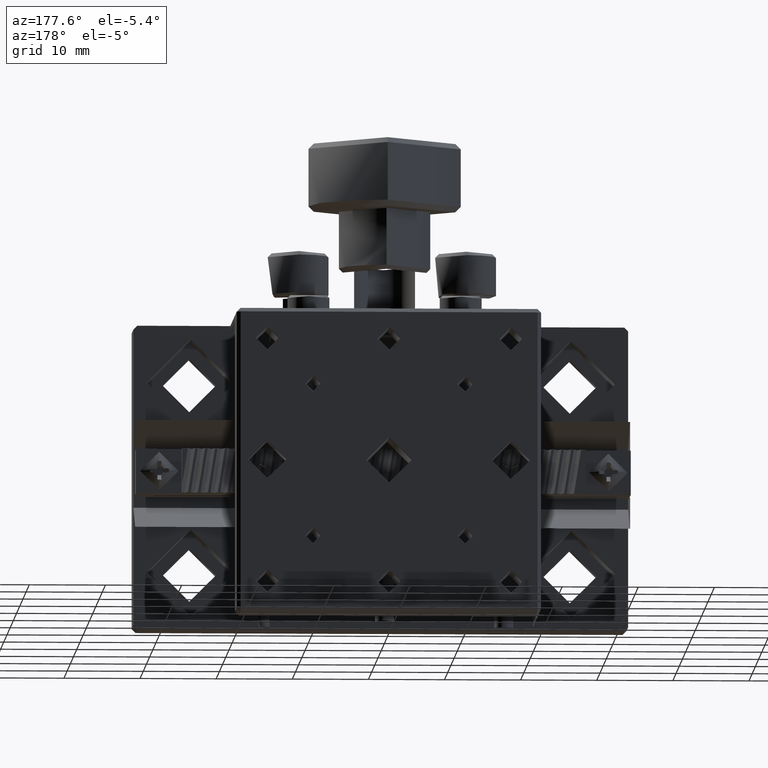
[diagram: clean part render]
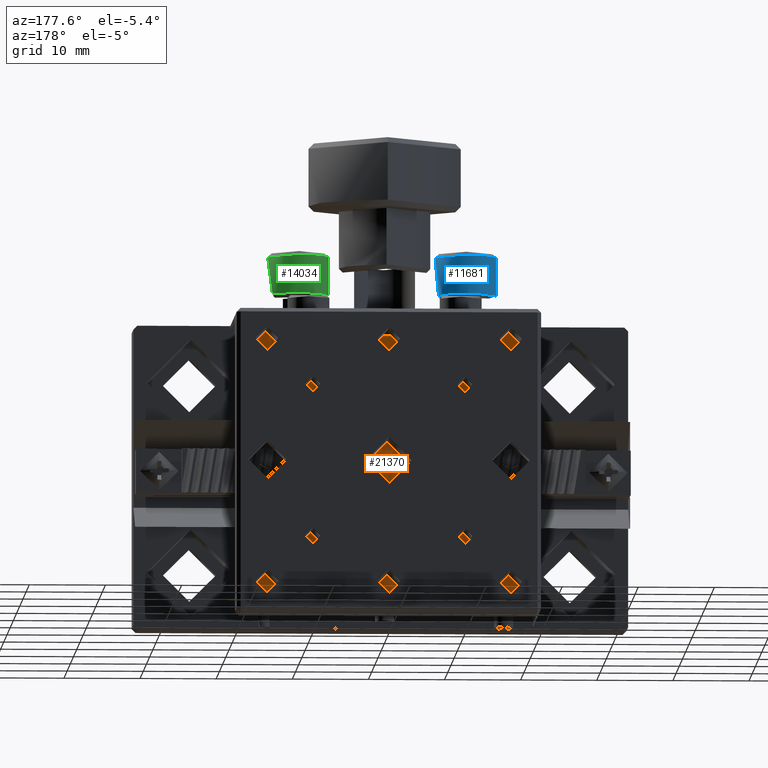
[diagram: same view with three faces highlighted in distinct colors, each labeled with its STEP entity id]
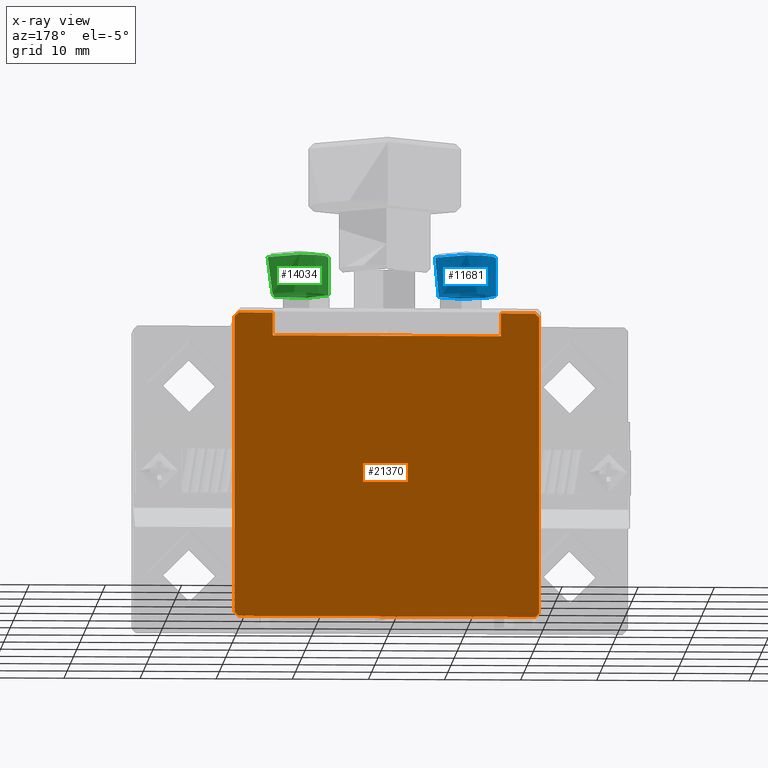
[diagram: x-ray of the same camera — body ghosted, the three highlighted faces saturated]
A machine part, auxiliary view with three faces highlighted in distinct colors.
The next image is the same camera in x-ray (body ghosted, the three faces saturated) — at least one of them is partly hidden behind the body in this view.
Their STEP definitions:

[orange] entity #21370 — the highlighted planar face has unit normal (-0, -1, 0).
#51 = CARTESIAN_POINT ( 'NONE',  ( 36.61330177514791728, 32.55204733727814670, 1.275000000000005240 ) ) ;
#98 = VERTEX_POINT ( 'NONE', #11751 ) ;
#184 = CARTESIAN_POINT ( 'NONE',  ( 4.294551284482553299, 32.55204733727815380, 1.245160027951528692 ) ) ;
#201 = CARTESIAN_POINT ( 'NONE',  ( 7.671964293083752828, 32.55204733727813959, -12.26560805632169249 ) ) ;
#203 = CARTESIAN_POINT ( 'NONE',  ( 6.613301775147912842, 32.55204733727813959, -7.499999999999881872 ) ) ;
#234 = CARTESIAN_POINT ( 'NONE',  ( 20.77243295140525703, 32.55204733727813249, -17.24999999999986144 ) ) ;
#302 = CARTESIAN_POINT ( 'NONE',  ( 8.965900160498531335, 32.55204733727813959, -10.84604211778363236 ) ) ;
#316 = CARTESIAN_POINT ( 'NONE',  ( 33.73007836059832698, 32.55204733727814670, -12.33886963622713218 ) ) ;
#323 = CARTESIAN_POINT ( 'NONE',  ( 37.73417788283791907, 32.55204733727814670, -0.6327003457485418370 ) ) ;
#389 = CARTESIAN_POINT ( 'NONE',  ( 0.6133017751479112878, 32.55204733727813959, 20.00000000000004263 ) ) ;
#399 = CARTESIAN_POINT ( 'NONE',  ( 8.952179569458445840, 32.55204733727813959, -10.88320279520946343 ) ) ;
#416 = CARTESIAN_POINT ( 'NONE',  ( 33.08941661521481592, 32.55204733727813959, -12.01154370871340227 ) ) ;
#432 = CARTESIAN_POINT ( 'NONE',  ( 21.03634297164969169, 32.55204733727813959, -14.82359429380815463 ) ) ;
#518 = CARTESIAN_POINT ( 'NONE',  ( 9.113234405169944097, 32.55204733727813959, -9.682442783675581310 ) ) ;
#521 = CARTESIAN_POINT ( 'NONE',  ( 35.61330177514791728, 32.55204733727813959, 20.00000000000004974 ) ) ;
#550 = CARTESIAN_POINT ( 'NONE',  ( 20.61330177514791728, 32.55204733727813959, -17.24999999999986500 ) ) ;
#573 = CARTESIAN_POINT ( 'NONE',  ( 35.64959879587496516, 32.55204733727814670, -0.8394717799850848206 ) ) ;
#636 = CARTESIAN_POINT ( 'NONE',  ( 35.61330177514791018, 32.55204733727813959, -29.61324245374878927 ) ) ;
#714 = CARTESIAN_POINT ( 'NONE',  ( 36.06182279446723982, 32.55204733727813249, -12.05075149682200397 ) ) ;
#773 = CARTESIAN_POINT ( 'NONE',  ( 35.40028457294522468, 32.55204733727816091, 0.3933547213005292309 ) ) ;
#815 = ORIENTED_EDGE ( 'NONE', *, *, #7731, .T. ) ;
#871 = ORIENTED_EDGE ( 'NONE', *, *, #12770, .T. ) ;
#930 = CARTESIAN_POINT ( 'NONE',  ( 35.00634292752754106, 32.55204733727813959, -7.521941155917869715 ) ) ;
#945 = CARTESIAN_POINT ( 'NONE',  ( 4.181798917008546113, 32.55204733727814670, -1.199933820315572053 ) ) ;
#1214 = LINE ( 'NONE', #14922, #2216 ) ;
#1255 = CARTESIAN_POINT ( 'NONE',  ( 4.113369145125888693, 32.55204733727813959, -10.31755721632744738 ) ) ;
#1354 = CARTESIAN_POINT ( 'NONE',  ( 40.61330177514792439, 32.55204733727814670, -14.49999999999986855 ) ) ;
#1367 = EDGE_CURVE ( 'NONE', #4497, #14385, #9255, .T. ) ;
#1372 = CARTESIAN_POINT ( 'NONE',  ( 4.613301775147911066, 32.55204733727814670, -1.275000000000001910 ) ) ;
#1386 = CARTESIAN_POINT ( 'NONE',  ( 20.30079780324019367, 32.55204733727814670, -14.77925487455721765 ) ) ;
#1444 = LINE ( 'NONE', #8261, #5643 ) ;
#1454 = CARTESIAN_POINT ( 'NONE',  ( 6.613301775147919948, 32.55204733727813959, -12.49999999999988276 ) ) ;
#1456 = LINE ( 'NONE', #1354, #8763 ) ;
#1470 = CARTESIAN_POINT ( 'NONE',  ( 3.980601429397501168, 32.55204733727814670, -1.120876107689271706 ) ) ;
#1476 = CARTESIAN_POINT ( 'NONE',  ( 5.791330315332874790, 32.55204733727816091, 0.4881207203202870271 ) ) ;
#1523 = CARTESIAN_POINT ( 'NONE',  ( 40.11330177514791018, 32.55204733727813959, -19.99999999999987921 ) ) ;
#1587 = CARTESIAN_POINT ( 'NONE',  ( 3.649598795875333757, 32.55204733727815380, -0.8394717799860287322 ) ) ;
#1593 = CARTESIAN_POINT ( 'NONE',  ( 5.101443812842690662, 32.55204733727815380, -1.178020090842482492 ) ) ;
#1607 = CARTESIAN_POINT ( 'NONE',  ( 19.36336907704967558, 32.55204733727814670, -16.15860422524255213 ) ) ;
#1703 = CARTESIAN_POINT ( 'NONE',  ( 7.006342927531766129, 32.55204733727813249, -7.521941155917867938 ) ) ;
#1803 = CARTESIAN_POINT ( 'NONE',  ( 7.496525189697777591, 32.55204733727814670, -7.661130363772627128 ) ) ;
#1911 = CARTESIAN_POINT ( 'NONE',  ( 6.613301775147912842, 32.55204733727813959, -7.499999999999881872 ) ) ;
#2011 = CARTESIAN_POINT ( 'NONE',  ( 8.878909831469536940, 32.55204733727813249, -8.941337482065124576 ) ) ;
#2041 = CARTESIAN_POINT ( 'NONE',  ( 20.80974420130334579, 32.55204733727813959, -14.76097057795888468 ) ) ;
#2106 = CARTESIAN_POINT ( 'NONE',  ( 8.921637980110075361, 32.55204733727814670, -9.039759107609556921 ) ) ;
#2120 = LINE ( 'NONE', #636, #15416 ) ;
#2139 = CARTESIAN_POINT ( 'NONE',  ( 21.15228144217314110, 32.55204733727814670, -17.12810262512579129 ) ) ;
#2163 = CARTESIAN_POINT ( 'NONE',  ( 36.41292737302596549, 32.55204733727815380, -1.263810010481818846 ) ) ;
#2216 = VECTOR ( 'NONE', #17663, 1000.000000000000114 ) ;
#2369 = CARTESIAN_POINT ( 'NONE',  ( 40.61330177514792439, 32.55204733727815380, 19.50000000000003553 ) ) ;
#2370 = CARTESIAN_POINT ( 'NONE',  ( 36.61330177514791728, 32.55204733727814670, -1.274999999999994804 ) ) ;
#2399 = CARTESIAN_POINT ( 'NONE',  ( 4.613301775147911066, 32.55204733727814670, 1.274999999999994804 ) ) ;
#2416 = CARTESIAN_POINT ( 'NONE',  ( 36.13718693509314761, 32.55204733727813249, -7.988456291302915346 ) ) ;
#2529 = CARTESIAN_POINT ( 'NONE',  ( 36.62484548384496463, 32.55204733727813249, -11.52388515994389984 ) ) ;
#2544 = CARTESIAN_POINT ( 'NONE',  ( 4.277248174825853511, 32.55204733727813959, -1.231172541053816349 ) ) ;
#2550 = ORIENTED_EDGE ( 'NONE', *, *, #9068, .T. ) ;
#2639 = CARTESIAN_POINT ( 'NONE',  ( 34.93138601157139078, 32.55204733727813959, -12.49999999999987921 ) ) ;
#2668 = CARTESIAN_POINT ( 'NONE',  ( 32.41293449357204537, 32.55204733727813959, -11.19285180684155989 ) ) ;
#2703 = CARTESIAN_POINT ( 'NONE',  ( 36.61330177514791728, 32.55204733727814670, 1.275000000000005240 ) ) ;
#2713 = VERTEX_POINT ( 'NONE', #2369 ) ;
#2733 = ORIENTED_EDGE ( 'NONE', *, *, #1367, .T. ) ;
#2743 = CARTESIAN_POINT ( 'NONE',  ( 37.02740979268521215, 32.55204733727814670, -10.65892951043342762 ) ) ;
#2776 = CARTESIAN_POINT ( 'NONE',  ( 20.07432210812283202, 32.55204733727813959, -14.87189737487385344 ) ) ;
#2854 = CARTESIAN_POINT ( 'NONE',  ( 4.723593925667564974, 32.55204733727813959, -11.64587857509643065 ) ) ;
#2893 = CARTESIAN_POINT ( 'NONE',  ( 19.46745170597105812, 32.55204733727814670, -16.50000645838634483 ) ) ;
#2991 = ORIENTED_EDGE ( 'NONE', *, *, #18981, .F. ) ;
#2995 = CARTESIAN_POINT ( 'NONE',  ( 5.888234470576792390, 32.55204733727813959, 0.1617832853757462386 ) ) ;
#3010 = CARTESIAN_POINT ( 'NONE',  ( 19.44314972421202725, 32.55204733727813249, -15.55990288367663332 ) ) ;
#3012 = EDGE_LOOP ( 'NONE', ( #7633, #19427 ) ) ;
#3025 = CARTESIAN_POINT ( 'NONE',  ( 37.24600212089817575, 32.55204733727814670, 1.120876107688872914 ) ) ;
#3038 = B_SPLINE_CURVE_WITH_KNOTS ( 'NONE', 3,
 ( #11348, #7775, #4745, #6152, #19596, #17958, #4843, #8092, #21000, #19803, #19481, #9817, #14702, #2893, #4517, #18063, #1607, #4952, #12752, #9384, #19374, #21419, #3010, #17851, #9708, #21320, #17732, #3212, #2776, #9504, #16226, #1386, #11555, #16541 ),
 .UNSPECIFIED., .F., .F.,
 ( 4, 1, 1, 2, 2, 2, 1, 1, 2, 2, 2, 1, 1, 2, 2, 2, 1, 1, 2, 2, 4 ),
 ( 0.000000000000000000, 0.06249999999999672484, 0.09374999999999508726, 0.1093749999999946571, 0.1249999999999942268, 0.2500000000000024425, 0.3125000000000056621, 0.3437500000000083267, 0.3593750000000091593, 0.3750000000000099365, 0.5000000000000086597, 0.5625000000000093259, 0.5937500000000097700, 0.6093750000000085487, 0.6250000000000074385, 0.7500000000000005551, 0.8124999999999971134, 0.8437499999999947820, 0.8593749999999946709, 0.8749999999999946709, 1.000000000000000000 ),
 .UNSPECIFIED. ) ;
#3077 = CARTESIAN_POINT ( 'NONE',  ( 4.113268090158932466, 32.55204733727813249, -9.841221391836102228 ) ) ;
#3088 = CARTESIAN_POINT ( 'NONE',  ( 3.462635443088041054, 32.55204733727814670, -0.5497567223560834160 ) ) ;
#3196 = CARTESIAN_POINT ( 'NONE',  ( 5.246002120897182763, 32.55204733727815380, 1.120876107689842138 ) ) ;
#3212 = CARTESIAN_POINT ( 'NONE',  ( 20.01677715795872814, 32.55204733727814670, -14.89988067785141723 ) ) ;
#3232 = CARTESIAN_POINT ( 'NONE',  ( 37.10144381284283099, 32.55204733727815380, -1.178020090842475609 ) ) ;
#3292 = CARTESIAN_POINT ( 'NONE',  ( 35.61330177514791018, 32.55204733727814670, 17.00000000000006750 ) ) ;
#3305 = CARTESIAN_POINT ( 'NONE',  ( 3.400284572944744177, 32.55204733727814670, 0.3933547212980048058 ) ) ;
#3389 = EDGE_CURVE ( 'NONE', #2713, #13182, #1456, .T. ) ;
#3395 = DIRECTION ( 'NONE',  ( -0.7071067811865326957, 0.000000000000000000, 0.7071067811865622277 ) ) ;
#3453 = CARTESIAN_POINT ( 'NONE',  ( 37.84451848482652991, 32.55204733727815380, -0.3359419005121503932 ) ) ;
#3534 = CARTESIAN_POINT ( 'NONE',  ( 6.772165521231207741, 32.55204733727814670, -7.499999999999880984 ) ) ;
#3552 = CARTESIAN_POINT ( 'NONE',  ( 32.56255027831622328, 32.55204733727813959, -11.44852101930477417 ) ) ;
#3564 = CARTESIAN_POINT ( 'NONE',  ( 21.78345382608380376, 32.55204733727813249, -16.44009711632313042 ) ) ;
#3646 = CARTESIAN_POINT ( 'NONE',  ( 8.945701429316837761, 32.55204733727813959, -10.90019668479074966 ) ) ;
#3719 = B_SPLINE_CURVE_WITH_KNOTS ( 'NONE', 3,
 ( #15757, #7730, #930, #7297, #12397, #10755, #12295, #9350, #3948, #2416, #20960, #10552, #20841, #4055, #7521, #10979, #7412, #12605, #10655, #19119, #17591, #2743, #10873, #15539, #4150, #14016, #20521, #2529, #6117, #714, #17486, #13899, #17266, #9026, #20640, #19017, #2639, #9243 ),
 .UNSPECIFIED., .F., .F.,
 ( 4, 1, 1, 1, 2, 2, 2, 1, 1, 1, 2, 2, 2, 1, 1, 1, 2, 2, 2, 1, 1, 1, 2, 2, 4 ),
 ( 0.000000000000000000, 0.06249999999998970268, 0.09374999999998455402, 0.1093749999999807099, 0.1171874999999787254, 0.1249999999999767408, 0.2499999999999636957, 0.3124999999999578115, 0.3437499999999549249, 0.3593749999999537592, 0.3671874999999537037, 0.3749999999999536482, 0.4999999999999464873, 0.5624999999999424904, 0.5937499999999406031, 0.6093749999999400480, 0.6171874999999404920, 0.6249999999999409361, 0.7499999999999582556, 0.8124999999999669154, 0.8437499999999703570, 0.8593749999999711342, 0.8671874999999713562, 0.8749999999999715783, 1.000000000000000000 ),
 .UNSPECIFIED. ) ;
#3727 = VERTEX_POINT ( 'NONE', #4336 ) ;
#3860 = CARTESIAN_POINT ( 'NONE',  ( 0.6133017751479181712, 32.55204733727814670, -14.49999999999987921 ) ) ;
#3873 = CARTESIAN_POINT ( 'NONE',  ( 20.61330177514791728, 32.55204733727813959, -14.74999999999989164 ) ) ;
#3901 = CARTESIAN_POINT ( 'NONE',  ( 35.33826812286236674, 32.55204733727814670, 0.08089164268979547046 ) ) ;
#3948 = CARTESIAN_POINT ( 'NONE',  ( 35.85417997487021324, 32.55204733727813249, -7.802391671547074914 ) ) ;
#3960 = ORIENTED_EDGE ( 'NONE', *, *, #16969, .T. ) ;
#3962 = ORIENTED_EDGE ( 'NONE', *, *, #14834, .T. ) ;
#3975 = CARTESIAN_POINT ( 'NONE',  ( 33.55463925721275587, 32.55204733727814670, -7.734391943678246228 ) ) ;
#4010 = CARTESIAN_POINT ( 'NONE',  ( 36.27724817482443598, 32.55204733727814670, -1.231172541053809910 ) ) ;
#4055 = CARTESIAN_POINT ( 'NONE',  ( 36.87890983146726143, 32.55204733727814670, -8.941337482061136654 ) ) ;
#4108 = CARTESIAN_POINT ( 'NONE',  ( 35.46263544308773419, 32.55204733727814670, -0.5497567223552894955 ) ) ;
#4150 = CARTESIAN_POINT ( 'NONE',  ( 36.95217956945870696, 32.55204733727813249, -10.88320279520882750 ) ) ;
#4171 = CARTESIAN_POINT ( 'NONE',  ( 4.613301775147911066, 32.55204733727814670, 1.274999999999994804 ) ) ;
#4176 = CARTESIAN_POINT ( 'NONE',  ( 32.26070338979778285, 32.55204733727813249, -9.153957882214168507 ) ) ;
#4208 = CARTESIAN_POINT ( 'NONE',  ( 35.44453378545835420, 32.55204733727816091, -0.5100051775479867988 ) ) ;
#4297 = CARTESIAN_POINT ( 'NONE',  ( 32.30496557018502557, 32.55204733727814670, -10.96024089238945720 ) ) ;
#4317 = ORIENTED_EDGE ( 'NONE', *, *, #13703, .T. ) ;
#4336 = CARTESIAN_POINT ( 'NONE',  ( 0.6133017751479213908, 32.55204733727814670, 19.50000000000003553 ) ) ;
#4351 = EDGE_LOOP ( 'NONE', ( #8356, #2733 ) ) ;
#4379 = CARTESIAN_POINT ( 'NONE',  ( 5.613510670178193607, 32.55204733727813249, -7.708481708275520816 ) ) ;
#4404 = CARTESIAN_POINT ( 'NONE',  ( 32.24080895385233703, 32.55204733727814670, -9.209825597082360815 ) ) ;
#4442 = CARTESIAN_POINT ( 'NONE',  ( 1.113301775147933270, 32.55204733727814670, 20.00000000000004263 ) ) ;
#4481 = CARTESIAN_POINT ( 'NONE',  ( 6.454438029065972415, 32.55204733727813249, -12.49999999999988276 ) ) ;
#4497 = VERTEX_POINT ( 'NONE', #13384 ) ;
#4502 = CARTESIAN_POINT ( 'NONE',  ( 5.877170677129464060, 32.55204733727815380, -0.2002254690402075488 ) ) ;
#4517 = CARTESIAN_POINT ( 'NONE',  ( 19.45837166772481197, 32.55204733727814670, -16.47854887097307497 ) ) ;
#4654 = CARTESIAN_POINT ( 'NONE',  ( 36.61330177514791728, 32.55204733727814670, 1.275000000000005240 ) ) ;
#4712 = EDGE_CURVE ( 'NONE', #5538, #15927, #3038, .T. ) ;
#4734 = VERTEX_POINT ( 'NONE', #521 ) ;
#4745 = CARTESIAN_POINT ( 'NONE',  ( 20.41685934899285471, 32.55204733727813959, -17.23902942204087552 ) ) ;
#4798 = VERTEX_POINT ( 'NONE', #203 ) ;
#4811 = CARTESIAN_POINT ( 'NONE',  ( 5.674602067106667036, 32.55204733727813959, -7.682842965983142314 ) ) ;
#4821 = CARTESIAN_POINT ( 'NONE',  ( 3.382085065468606100, 32.55204733727814670, 0.3359419005107461831 ) ) ;
#4843 = CARTESIAN_POINT ( 'NONE',  ( 20.17320465882455238, 32.55204733727813959, -17.17015205093565555 ) ) ;
#4860 = CARTESIAN_POINT ( 'NONE',  ( 37.22175293666695239, 32.55204733727814670, -1.122124282151150565 ) ) ;
#4928 = CARTESIAN_POINT ( 'NONE',  ( 3.836024295654539618, 32.55204733727814670, -1.025739878066491917 ) ) ;
#4934 = CARTESIAN_POINT ( 'NONE',  ( 5.858394208359610111, 32.55204733727815380, 0.3189210296601668326 ) ) ;
#4936 = ORIENTED_EDGE ( 'NONE', *, *, #11998, .T. ) ;
#4939 = DIRECTION ( 'NONE',  ( -1.000000000000000000, -0.000000000000000000, -2.220446049250312588E-16 ) ) ;
#4952 = CARTESIAN_POINT ( 'NONE',  ( 19.36326812419705945, 32.55204733727811828, -15.92069788737853919 ) ) ;
#5143 = CARTESIAN_POINT ( 'NONE',  ( 3.368209341937279611, 32.55204733727815380, -0.3189210296639340414 ) ) ;
#5159 = CARTESIAN_POINT ( 'NONE',  ( 7.238131602867560410, 32.55204733727814670, -12.44149025088524319 ) ) ;
#5174 = CARTESIAN_POINT ( 'NONE',  ( 33.71310509035740921, 32.55204733727813959, -12.33239965416896133 ) ) ;
#5180 = CARTESIAN_POINT ( 'NONE',  ( 37.88833542743347493, 32.55204733727813959, -0.08089164268786551426 ) ) ;
#5186 = CARTESIAN_POINT ( 'NONE',  ( 21.86333542609852287, 32.55204733727814670, -16.07930211262186759 ) ) ;
#5261 = CARTESIAN_POINT ( 'NONE',  ( 9.091419567960638659, 32.55204733727813249, -10.39289216102172198 ) ) ;
#5285 = CARTESIAN_POINT ( 'NONE',  ( 37.79133031533287124, 32.55204733727814670, 0.4881207203202304612 ) ) ;
#5292 = CARTESIAN_POINT ( 'NONE',  ( 20.94276378959979112, 32.55204733727813249, -14.79296809700594650 ) ) ;
#5354 = VECTOR ( 'NONE', #9763, 1000.000000000000000 ) ;
#5377 = CARTESIAN_POINT ( 'NONE',  ( 7.552001483189165754, 32.55204733727813959, -12.31715703401662410 ) ) ;
#5394 = CARTESIAN_POINT ( 'NONE',  ( 33.95426052119082527, 32.55204733727813959, -12.41406380598774994 ) ) ;
#5538 = VERTEX_POINT ( 'NONE', #20826 ) ;
#5620 = EDGE_CURVE ( 'NONE', #5861, #18936, #13528, .T. ) ;
#5643 = VECTOR ( 'NONE', #3395, 1000.000000000000114 ) ;
#5661 = ORIENTED_EDGE ( 'NONE', *, *, #3389, .F. ) ;
#5719 = CARTESIAN_POINT ( 'NONE',  ( 32.34769371882394040, 32.55204733727813959, -11.05866251793228194 ) ) ;
#5755 = CARTESIAN_POINT ( 'NONE',  ( 35.41974619427228532, 32.55204733727816091, 0.4488983058085544431 ) ) ;
#5820 = CARTESIAN_POINT ( 'NONE',  ( 33.42044996830151860, 32.55204733727814670, -7.799632718428012090 ) ) ;
#5861 = VERTEX_POINT ( 'NONE', #4442 ) ;
#5927 = CARTESIAN_POINT ( 'NONE',  ( 34.29521753872712964, 32.55204733727813249, -7.499999999999877431 ) ) ;
#5991 = CARTESIAN_POINT ( 'NONE',  ( 40.61330177514793149, 32.55204733727814670, 17.00000000000005329 ) ) ;
#5997 = EDGE_LOOP ( 'NONE', ( #2550, #3960 ) ) ;
#6012 = CARTESIAN_POINT ( 'NONE',  ( 5.089416615209525041, 32.55204733727814670, -12.01154370870589894 ) ) ;
#6019 = CARTESIAN_POINT ( 'NONE',  ( 0.6133017751479217239, 32.55204733727813959, -19.49999999999986144 ) ) ;
#6073 = CARTESIAN_POINT ( 'NONE',  ( 36.29455128448503842, 32.55204733727816091, 1.245160027951538240 ) ) ;
#6117 = CARTESIAN_POINT ( 'NONE',  ( 36.25918035024896824, 32.55204733727814670, -11.88970784947741777 ) ) ;
#6120 = CARTESIAN_POINT ( 'NONE',  ( 5.988471947428273268, 32.55204733727815380, -7.558509749114525000 ) ) ;
#6138 = CARTESIAN_POINT ( 'NONE',  ( 5.763968107207964486, 32.55204733727815380, 0.5497567223561468097 ) ) ;
#6150 = CARTESIAN_POINT ( 'NONE',  ( 1.113301775147924166, 32.55204733727813959, -19.99999999999988276 ) ) ;
#6152 = CARTESIAN_POINT ( 'NONE',  ( 20.28383976069632766, 32.55204733727814670, -17.20703190299380125 ) ) ;
#6153 = VECTOR ( 'NONE', #12405, 1000.000000000000000 ) ;
#6170 = CARTESIAN_POINT ( 'NONE',  ( 37.57700475442052124, 32.55204733727814670, 0.8394717799863130603 ) ) ;
#6333 = CARTESIAN_POINT ( 'NONE',  ( 4.304965570185655288, 32.55204733727813249, -10.96024089239037380 ) ) ;
#6353 = CARTESIAN_POINT ( 'NONE',  ( 4.775612014248377335, 32.55204733727814670, -1.275000000000002132 ) ) ;
#6462 = CARTESIAN_POINT ( 'NONE',  ( 3.587561897081462892, 32.55204733727814670, 0.7772774794939765197 ) ) ;
#6463 = ORIENTED_EDGE ( 'NONE', *, *, #9961, .T. ) ;
#6559 = VERTEX_POINT ( 'NONE', #17755 ) ;
#6560 = CARTESIAN_POINT ( 'NONE',  ( 3.413352180323229401, 32.55204733727814670, 0.4314629653496144801 ) ) ;
#6634 = DIRECTION ( 'NONE',  ( -0.000000000000000000, 1.242222493215970890E-16, 1.000000000000000000 ) ) ;
#6703 = VECTOR ( 'NONE', #11649, 1000.000000000000000 ) ;
#6710 = CARTESIAN_POINT ( 'NONE',  ( 37.80685735602310160, 32.55204733727815380, -0.4488983058092399503 ) ) ;
#6716 = CARTESIAN_POINT ( 'NONE',  ( 21.78972325522273934, 32.55204733727814670, -16.42300130435042504 ) ) ;
#6809 = VERTEX_POINT ( 'NONE', #20668 ) ;
#6814 = FACE_BOUND ( 'NONE', #20456, .T. ) ;
#6816 = CARTESIAN_POINT ( 'NONE',  ( 37.85839420835961278, 32.55204733727813959, 0.3189210296607108974 ) ) ;
#6825 = CARTESIAN_POINT ( 'NONE',  ( 21.09187196398077901, 32.55204733727813249, -17.15492165768857191 ) ) ;
#6888 = CARTESIAN_POINT ( 'NONE',  ( 7.806153581995484814, 32.55204733727814670, -12.20036728157205808 ) ) ;
#6910 = CARTESIAN_POINT ( 'NONE',  ( 37.16305849750455792, 32.55204733727815380, -1.150666332059798735 ) ) ;
#6974 = VECTOR ( 'NONE', #11093, 1000.000000000000000 ) ;
#7008 = DIRECTION ( 'NONE',  ( 2.220446049250312588E-16, -0.000000000000000000, -1.000000000000000000 ) ) ;
#7019 = CARTESIAN_POINT ( 'NONE',  ( 21.43631627318463373, 32.55204733727816091, -16.94480492006355377 ) ) ;
#7104 = CARTESIAN_POINT ( 'NONE',  ( 9.054724508087828028, 32.55204733727814670, -9.374999728287400913 ) ) ;
#7224 = CARTESIAN_POINT ( 'NONE',  ( 32.19919375761337932, 32.55204733727813959, -9.341070489557312229 ) ) ;
#7254 = CARTESIAN_POINT ( 'NONE',  ( 36.18179891700805939, 32.55204733727814670, -1.199933820315568944 ) ) ;
#7297 = CARTESIAN_POINT ( 'NONE',  ( 35.27234302910323294, 32.55204733727814670, -7.585936194012004918 ) ) ;
#7321 = CARTESIAN_POINT ( 'NONE',  ( 32.32178348342277729, 32.55204733727813249, -10.99979110496880885 ) ) ;
#7343 = VERTEX_POINT ( 'NONE', #9844 ) ;
#7347 = VERTEX_POINT ( 'NONE', #1523 ) ;
#7361 = CARTESIAN_POINT ( 'NONE',  ( 35.41335218032349985, 32.55204733727815380, 0.4314629653510176355 ) ) ;
#7370 = ORIENTED_EDGE ( 'NONE', *, *, #14437, .T. ) ;
#7412 = CARTESIAN_POINT ( 'NONE',  ( 36.93046302903636757, 32.55204733727813249, -9.061310944708777626 ) ) ;
#7424 = LINE ( 'NONE', #20646, #6974 ) ;
#7442 = CARTESIAN_POINT ( 'NONE',  ( 33.16478075583670204, 32.55204733727813959, -7.949248503173524050 ) ) ;
#7503 = EDGE_CURVE ( 'NONE', #15927, #5538, #19129, .T. ) ;
#7521 = CARTESIAN_POINT ( 'NONE',  ( 36.90482006687028615, 32.55204733727813249, -9.000208895027128619 ) ) ;
#7535 = CARTESIAN_POINT ( 'NONE',  ( 4.164403469338902042, 32.55204733727814670, -1.193555580875265587 ) ) ;
#7633 = ORIENTED_EDGE ( 'NONE', *, *, #7503, .T. ) ;
#7730 = CARTESIAN_POINT ( 'NONE',  ( 34.77216552122881410, 32.55204733727814670, -7.499999999999880096 ) ) ;
#7731 = EDGE_CURVE ( 'NONE', #4734, #12058, #2120, .T. ) ;
#7736 = CARTESIAN_POINT ( 'NONE',  ( 5.767220414104265558, 32.55204733727813959, -12.35258285867588413 ) ) ;
#7756 = CARTESIAN_POINT ( 'NONE',  ( 4.694278522452711933, 32.55204733727813959, 1.274999999999994804 ) ) ;
#7775 = CARTESIAN_POINT ( 'NONE',  ( 20.53391455927019038, 32.55204733727813959, -17.24999999999985789 ) ) ;
#7872 = LINE ( 'NONE', #9373, #18147 ) ;
#7948 = DIRECTION ( 'NONE',  ( 2.220446049250312588E-16, -0.000000000000000000, -1.000000000000000000 ) ) ;
#7957 = EDGE_CURVE ( 'NONE', #14385, #4497, #11246, .T. ) ;
#7965 = CARTESIAN_POINT ( 'NONE',  ( 5.577004754420699761, 32.55204733727814670, 0.8394717799861050045 ) ) ;
#8055 = CARTESIAN_POINT ( 'NONE',  ( 4.415693446701864922, 32.55204733727814670, -8.759121800266388647 ) ) ;
#8069 = CARTESIAN_POINT ( 'NONE',  ( 3.338369079720088450, 32.55204733727814670, -0.1617832853736114740 ) ) ;
#8075 = CARTESIAN_POINT ( 'NONE',  ( 5.888335427433466052, 32.55204733727815380, -0.08089164268787801815 ) ) ;
#8092 = CARTESIAN_POINT ( 'NONE',  ( 19.99301322316384244, 32.55204733727813959, -17.09890197946594981 ) ) ;
#8137 = AXIS2_PLACEMENT_3D ( 'NONE', #20030, #19930, #11779 ) ;
#8261 = CARTESIAN_POINT ( 'NONE',  ( 40.61330177514792439, 32.55204733727814670, 19.50000000000000711 ) ) ;
#8321 = CARTESIAN_POINT ( 'NONE',  ( 37.81325136997236314, 32.55204733727815380, -0.4314629653501125262 ) ) ;
#8356 = ORIENTED_EDGE ( 'NONE', *, *, #7957, .T. ) ;
#8409 = CARTESIAN_POINT ( 'NONE',  ( 8.503009624627857477, 32.55204733727814670, -8.354121424904029425 ) ) ;
#8434 = CARTESIAN_POINT ( 'NONE',  ( 37.35217648169979299, 32.55204733727815380, -1.045799221447446969 ) ) ;
#8440 = CARTESIAN_POINT ( 'NONE',  ( 21.55810669521026313, 32.55204733727813959, -15.17698550196142904 ) ) ;
#8518 = CARTESIAN_POINT ( 'NONE',  ( 7.513498459938317886, 32.55204733727813959, -7.667600345830708264 ) ) ;
#8552 = CARTESIAN_POINT ( 'NONE',  ( 20.99901257950670797, 32.55204733727813249, -14.81079528618932528 ) ) ;
#8607 = LINE ( 'NONE', #389, #6703 ) ;
#8618 = CARTESIAN_POINT ( 'NONE',  ( 8.624845483852487504, 32.55204733727814670, -11.52388515993861695 ) ) ;
#8717 = CARTESIAN_POINT ( 'NONE',  ( 8.813669056719758643, 32.55204733727813959, -8.807148193154183957 ) ) ;
#8750 = CARTESIAN_POINT ( 'NONE',  ( 20.92580574705603524, 32.55204733727814670, -17.22074512544254077 ) ) ;
#8763 = VECTOR ( 'NONE', #7948, 1000.000000000000000 ) ;
#8775 = CARTESIAN_POINT ( 'NONE',  ( 36.21987524682745629, 32.55204733727816091, -1.212988808086773451 ) ) ;
#8937 = ORIENTED_EDGE ( 'NONE', *, *, #5620, .F. ) ;
#9026 = CARTESIAN_POINT ( 'NONE',  ( 35.57354266753951322, 32.55204733727815380, -12.30833620496146175 ) ) ;
#9068 = EDGE_CURVE ( 'NONE', #6559, #6809, #3719, .T. ) ;
#9122 = VERTEX_POINT ( 'NONE', #51 ) ;
#9157 = CARTESIAN_POINT ( 'NONE',  ( 4.613301775147911066, 32.55204733727814670, -1.275000000000001910 ) ) ;
#9162 = CARTESIAN_POINT ( 'NONE',  ( 4.949355375469792762, 32.55204733727816091, 1.231172541053811686 ) ) ;
#9201 = CARTESIAN_POINT ( 'NONE',  ( 36.45099153604883213, 32.55204733727814670, 1.275000000000005240 ) ) ;
#9243 = CARTESIAN_POINT ( 'NONE',  ( 34.61330177514791728, 32.55204733727813959, -12.49999999999987921 ) ) ;
#9247 = CARTESIAN_POINT ( 'NONE',  ( 4.199193757612009748, 32.55204733727814670, -9.341070489560754808 ) ) ;
#9255 = B_SPLINE_CURVE_WITH_KNOTS ( 'NONE', 3,
 ( #9157, #10770, #17390, #2544, #15775, #945, #7535, #1470, #4928, #1587, #10009, #16304, #3088, #15112, #16418, #5143, #8069, #18260, #16524, #4821, #3305, #6560, #11744, #12948, #6462, #16729, #19780, #11534, #14680, #11424, #18358, #184, #19892, #19994 ),
 .UNSPECIFIED., .F., .F.,
 ( 4, 1, 1, 2, 2, 2, 1, 1, 2, 2, 2, 1, 1, 2, 2, 2, 1, 1, 2, 2, 4 ),
 ( 0.000000000000000000, 0.06250000000000026368, 0.09375000000000070777, 0.1093750000000009021, 0.1250000000000011102, 0.2499999999999995559, 0.3124999999999986677, 0.3437499999999982792, 0.3593749999999981126, 0.3749999999999979461, 0.4999999999999973355, 0.5624999999999970024, 0.5937499999999968914, 0.6093749999999966693, 0.6249999999999965583, 0.7499999999999954481, 0.8124999999999952260, 0.8437499999999951150, 0.8593749999999953371, 0.8749999999999954481, 1.000000000000000000 ),
 .UNSPECIFIED. ) ;
#9350 = CARTESIAN_POINT ( 'NONE',  ( 35.51349845993900800, 32.55204733727813959, -7.667600345831099062 ) ) ;
#9373 = CARTESIAN_POINT ( 'NONE',  ( 0.6133017751479181712, 32.55204733727813959, -19.99999999999988276 ) ) ;
#9384 = CARTESIAN_POINT ( 'NONE',  ( 19.40622570528098123, 32.55204733727813959, -15.67064968357230192 ) ) ;
#9504 = CARTESIAN_POINT ( 'NONE',  ( 20.11329531676193483, 32.55204733727814670, -14.85414993082255286 ) ) ;
#9520 = CARTESIAN_POINT ( 'NONE',  ( 36.81367617726893116, 32.55204733727813249, 1.263810010481828838 ) ) ;
#9597 = CARTESIAN_POINT ( 'NONE',  ( 5.782069764837410197, 32.55204733727816091, 0.5100051775484618632 ) ) ;
#9628 = CARTESIAN_POINT ( 'NONE',  ( 37.76396810720781616, 32.55204733727814670, 0.5497567223563234462 ) ) ;
#9675 = CARTESIAN_POINT ( 'NONE',  ( 4.274423980837394055, 32.55204733727814670, -9.116797204789905962 ) ) ;
#9708 = CARTESIAN_POINT ( 'NONE',  ( 19.60768034177153041, 32.55204733727813959, -15.23795941067796988 ) ) ;
#9718 = B_SPLINE_CURVE_WITH_KNOTS ( 'NONE', 3,
 ( #1454, #4481, #14230, #17595, #12818, #7736, #21064, #20847, #14550, #6012, #2854, #21168, #19443, #13041, #14345, #6333, #14666, #17923, #1255, #3077, #16291, #9247, #12608, #20965, #9675, #11200, #8055, #18026, #21285, #17814, #19668, #19237, #4379, #10982, #4811, #6120, #12717, #19340 ),
 .UNSPECIFIED., .F., .F.,
 ( 4, 1, 1, 1, 2, 2, 2, 1, 1, 1, 2, 2, 2, 1, 1, 1, 2, 2, 2, 1, 1, 1, 2, 2, 4 ),
 ( 0.000000000000000000, 0.06249999999999704403, 0.09374999999999555911, 0.1093749999999948236, 0.1171874999999945738, 0.1249999999999943101, 0.2499999999999892863, 0.3124999999999867883, 0.3437499999999856226, 0.3593749999999850675, 0.3671874999999850675, 0.3749999999999850675, 0.4999999999999874545, 0.5624999999999882316, 0.5937499999999886757, 0.6093749999999888978, 0.6171874999999893419, 0.6249999999999897859, 0.7499999999999942268, 0.8124999999999961142, 0.8437499999999971134, 0.8593749999999975575, 0.8671874999999978906, 0.8749999999999981126, 1.000000000000000000 ),
 .UNSPECIFIED. ) ;
#9763 = DIRECTION ( 'NONE',  ( 1.000000000000000000, 9.860761315262670339E-31, 2.220446049250312588E-16 ) ) ;
#9817 = CARTESIAN_POINT ( 'NONE',  ( 19.51318245300077692, 32.55204733727813959, -16.59652461719038996 ) ) ;
#9836 = CARTESIAN_POINT ( 'NONE',  ( 37.82631897735062410, 32.55204733727813249, -0.3933547212989015884 ) ) ;
#9844 = CARTESIAN_POINT ( 'NONE',  ( 5.613301775147919059, 32.55204733727814670, 17.00000000000005329 ) ) ;
#9961 = EDGE_CURVE ( 'NONE', #9122, #98, #19464, .T. ) ;
#10009 = CARTESIAN_POINT ( 'NONE',  ( 3.567502553700310219, 32.55204733727815380, -0.7388747065507298428 ) ) ;
#10025 = CARTESIAN_POINT ( 'NONE',  ( 8.664053271974246684, 32.55204733727813959, -8.551478980689626752 ) ) ;
#10040 = CARTESIAN_POINT ( 'NONE',  ( 33.82306218851359603, 32.55204733727814670, -12.37246703122655944 ) ) ;
#10134 = CARTESIAN_POINT ( 'NONE',  ( 8.930463029036252109, 32.55204733727813959, -9.061310944708184323 ) ) ;
#10164 = CARTESIAN_POINT ( 'NONE',  ( 21.11330823353397790, 32.55204733727814670, -17.14585006917714338 ) ) ;
#10272 = CARTESIAN_POINT ( 'NONE',  ( 21.85239008635247515, 32.55204733727814670, -16.19629349545740382 ) ) ;
#10423 = VECTOR ( 'NONE', #18899, 1000.000000000000000 ) ;
#10434 = B_SPLINE_CURVE_WITH_KNOTS ( 'NONE', 3,
 ( #2370, #20269, #2163, #4010, #8775, #7254, #15591, #12026, #15388, #573, #18974, #13854, #4108, #4208, #13966, #10610, #20592, #3901, #10500, #17123, #773, #7361, #5755, #17760, #16028, #14179, #12672, #17648, #12557, #16250, #21232, #6073, #9201, #2703 ),
 .UNSPECIFIED., .F., .F.,
 ( 4, 1, 1, 2, 2, 2, 1, 1, 2, 2, 2, 1, 1, 2, 2, 2, 1, 1, 2, 2, 4 ),
 ( 0.000000000000000000, 0.06249999999998491484, 0.09374999999998002986, 0.1093749999999775735, 0.1249999999999751032, 0.2499999999999648059, 0.3124999999999614197, 0.3437499999999596989, 0.3593749999999599765, 0.3749999999999602540, 0.4999999999999666933, 0.5624999999999699130, 0.5937499999999714673, 0.6093749999999722444, 0.6249999999999730216, 0.7499999999999811262, 0.8124999999999835687, 0.8437499999999846789, 0.8593749999999852340, 0.8749999999999857891, 1.000000000000000000 ),
 .UNSPECIFIED. ) ;
#10476 = CARTESIAN_POINT ( 'NONE',  ( 20.69268899102586090, 32.55204733727813959, -14.74999999999989342 ) ) ;
#10500 = CARTESIAN_POINT ( 'NONE',  ( 35.34943287316637850, 32.55204733727815380, 0.2002254690435634199 ) ) ;
#10552 = CARTESIAN_POINT ( 'NONE',  ( 36.66405327196901709, 32.55204733727814670, -8.551478980680494502 ) ) ;
#10577 = CARTESIAN_POINT ( 'NONE',  ( 32.29614052125970858, 32.55204733727813959, -10.93868905529244451 ) ) ;
#10610 = CARTESIAN_POINT ( 'NONE',  ( 35.36820934193622890, 32.55204733727814670, -0.3189210296612445261 ) ) ;
#10620 = ORIENTED_EDGE ( 'NONE', *, *, #16079, .T. ) ;
#10655 = CARTESIAN_POINT ( 'NONE',  ( 37.11323440516787286, 32.55204733727813959, -9.682442783680830445 ) ) ;
#10678 = CARTESIAN_POINT ( 'NONE',  ( 34.61330177514791728, 32.55204733727813959, -7.499999999999878320 ) ) ;
#10755 = CARTESIAN_POINT ( 'NONE',  ( 35.45938313619110716, 32.55204733727814670, -7.647417141323877843 ) ) ;
#10770 = CARTESIAN_POINT ( 'NONE',  ( 4.532325027842970755, 32.55204733727815380, -1.275000000000001910 ) ) ;
#10774 = EDGE_CURVE ( 'NONE', #19681, #13985, #17181, .T. ) ;
#10777 = CARTESIAN_POINT ( 'NONE',  ( 4.813676177267741885, 32.55204733727815380, 1.263810010481820845 ) ) ;
#10782 = CARTESIAN_POINT ( 'NONE',  ( 33.98847194742558031, 32.55204733727813959, -7.558509749114519671 ) ) ;
#10873 = CARTESIAN_POINT ( 'NONE',  ( 36.98579459644508205, 32.55204733727813959, -10.79017440291213425 ) ) ;
#10904 = CARTESIAN_POINT ( 'NONE',  ( 32.13518398233701134, 32.55204733727813959, -9.607107838970597058 ) ) ;
#10979 = CARTESIAN_POINT ( 'NONE',  ( 36.92163798010935949, 32.55204733727814670, -9.039759107608288602 ) ) ;
#10982 = CARTESIAN_POINT ( 'NONE',  ( 5.653060882757921846, 32.55204733727815380, -7.691663795037402274 ) ) ;
#10984 = B_SPLINE_CURVE_WITH_KNOTS ( 'NONE', 3,
 ( #1911, #3534, #1703, #13274, #11759, #16950, #1803, #8518, #19910, #15334, #8409, #10025, #8717, #2011, #20105, #2106, #10134, #7104, #518, #15127, #5261, #13702, #15023, #302, #399, #3646, #11867, #8618, #18373, #16748, #6888, #201, #20010, #14908, #5377, #5159, #18488, #11978 ),
 .UNSPECIFIED., .F., .F.,
 ( 4, 1, 1, 1, 2, 2, 2, 1, 1, 1, 2, 2, 2, 1, 1, 1, 2, 2, 2, 1, 1, 1, 2, 2, 4 ),
 ( 0.000000000000000000, 0.06250000000000111022, 0.09375000000000163758, 0.1093750000000019013, 0.1171875000000020262, 0.1250000000000021372, 0.2500000000000038858, 0.3125000000000049960, 0.3437500000000055511, 0.3593750000000055511, 0.3671875000000053846, 0.3750000000000052736, 0.5000000000000013323, 0.5624999999999996669, 0.5937499999999988898, 0.6093749999999980016, 0.6171874999999977796, 0.6249999999999974465, 0.7499999999999966693, 0.8124999999999963363, 0.8437499999999965583, 0.8593749999999967804, 0.8671874999999971134, 0.8749999999999973355, 1.000000000000000000 ),
 .UNSPECIFIED. ) ;
#11009 = CARTESIAN_POINT ( 'NONE',  ( 6.613301775147919948, 32.55204733727813959, -12.49999999999988276 ) ) ;
#11093 = DIRECTION ( 'NONE',  ( 0.7071067811865401342, 0.000000000000000000, 0.7071067811865549002 ) ) ;
#11104 = CARTESIAN_POINT ( 'NONE',  ( 5.613301775147918171, 32.55204733727814670, 20.00000000000004263 ) ) ;
#11105 = CARTESIAN_POINT ( 'NONE',  ( 5.123306952696602856, 32.55204733727813959, -1.168767989689268427 ) ) ;
#11200 = CARTESIAN_POINT ( 'NONE',  ( 4.280902120978714365, 32.55204733727813249, -9.099803315209502586 ) ) ;
#11246 = B_SPLINE_CURVE_WITH_KNOTS ( 'NONE', 3,
 ( #4171, #7756, #10777, #9162, #14367, #20986, #15556, #3196, #16529, #7965, #17838, #19358, #6138, #9597, #1476, #4934, #2995, #8075, #4502, #14894, #12837, #21306, #16310, #19685, #14570, #16423, #16104, #21188, #11540, #11105, #1593, #16212, #6353, #1372 ),
 .UNSPECIFIED., .F., .F.,
 ( 4, 1, 1, 2, 2, 2, 1, 1, 2, 2, 2, 1, 1, 2, 2, 2, 1, 1, 2, 2, 4 ),
 ( 0.000000000000000000, 0.06249999999999873712, 0.09374999999999844569, 0.1093749999999986400, 0.1249999999999988065, 0.2499999999999977240, 0.3124999999999971689, 0.3437499999999968914, 0.3593749999999967248, 0.3749999999999965583, 0.4999999999999955591, 0.5624999999999951150, 0.5937499999999947820, 0.6093749999999945599, 0.6249999999999943379, 0.7499999999999942268, 0.8124999999999942268, 0.8437499999999941158, 0.8593749999999944489, 0.8749999999999947820, 1.000000000000000000 ),
 .UNSPECIFIED. ) ;
#11348 = CARTESIAN_POINT ( 'NONE',  ( 20.61330177514791728, 32.55204733727813959, -17.24999999999986500 ) ) ;
#11356 = ORIENTED_EDGE ( 'NONE', *, *, #17136, .F. ) ;
#11424 = CARTESIAN_POINT ( 'NONE',  ( 4.103296597599475071, 32.55204733727815380, 1.168767989689253772 ) ) ;
#11534 = CARTESIAN_POINT ( 'NONE',  ( 4.004850613629706402, 32.55204733727814670, 1.122124282150875896 ) ) ;
#11540 = CARTESIAN_POINT ( 'NONE',  ( 5.163058497504474431, 32.55204733727815380, -1.150666332059639085 ) ) ;
#11555 = CARTESIAN_POINT ( 'NONE',  ( 20.45417059889096478, 32.55204733727813959, -14.74999999999989697 ) ) ;
#11649 = DIRECTION ( 'NONE',  ( 1.000000000000000000, 9.860761315262670339E-31, 2.220446049250312588E-16 ) ) ;
#11678 = CARTESIAN_POINT ( 'NONE',  ( 34.45443802906569175, 32.55204733727814670, -12.49999999999988098 ) ) ;
#11691 = CARTESIAN_POINT ( 'NONE',  ( 21.63859176537525641, 32.55204733727815380, -15.27560787198633285 ) ) ;
#11744 = CARTESIAN_POINT ( 'NONE',  ( 3.419746194272557993, 32.55204733727814670, 0.4488983058088406586 ) ) ;
#11751 = CARTESIAN_POINT ( 'NONE',  ( 36.61330177514791728, 32.55204733727814670, -1.274999999999994804 ) ) ;
#11759 = CARTESIAN_POINT ( 'NONE',  ( 7.403541361783053887, 32.55204733727814670, -7.627532968773204303 ) ) ;
#11775 = CARTESIAN_POINT ( 'NONE',  ( 33.37242357541633453, 32.55204733727813959, -12.19760832844784382 ) ) ;
#11779 = DIRECTION ( 'NONE',  ( 0.000000000000000000, -1.242222493215970890E-16, -1.000000000000000000 ) ) ;
#11788 = CARTESIAN_POINT ( 'NONE',  ( 21.71220375461302510, 32.55204733727815380, -16.62028855198492039 ) ) ;
#11867 = CARTESIAN_POINT ( 'NONE',  ( 8.810910103598468268, 32.55204733727813959, -11.24087819972554314 ) ) ;
#11895 = CARTESIAN_POINT ( 'NONE',  ( 21.05339889147142074, 32.55204733727813959, -14.82984794906414194 ) ) ;
#11978 = CARTESIAN_POINT ( 'NONE',  ( 6.613301775147919948, 32.55204733727813959, -12.49999999999988276 ) ) ;
#11998 = EDGE_CURVE ( 'NONE', #17912, #4798, #9718, .T. ) ;
#12007 = CARTESIAN_POINT ( 'NONE',  ( 21.37534236447275404, 32.55204733727814670, -14.99437856662725466 ) ) ;
#12026 = CARTESIAN_POINT ( 'NONE',  ( 35.98060142939408479, 32.55204733727814670, -1.120876107686972878 ) ) ;
#12058 = VERTEX_POINT ( 'NONE', #3292 ) ;
#12168 = CARTESIAN_POINT ( 'NONE',  ( 20.61330177514791728, 32.55204733727813959, -14.74999999999989164 ) ) ;
#12204 = CARTESIAN_POINT ( 'NONE',  ( 32.60175806644161156, 32.55204733727813959, -8.476114840060684941 ) ) ;
#12295 = CARTESIAN_POINT ( 'NONE',  ( 35.49652518969719495, 32.55204733727815380, -7.661130363772620910 ) ) ;
#12397 = CARTESIAN_POINT ( 'NONE',  ( 35.40354136178121536, 32.55204733727813959, -7.627532968773195421 ) ) ;
#12405 = DIRECTION ( 'NONE',  ( 0.7071067811865328068, 0.000000000000000000, -0.7071067811865622277 ) ) ;
#12419 = CARTESIAN_POINT ( 'NONE',  ( 32.96742320005152038, 32.55204733727813959, -8.110292150519924803 ) ) ;
#12477 = LINE ( 'NONE', #5991, #10423 ) ;
#12557 = CARTESIAN_POINT ( 'NONE',  ( 36.06354505279256273, 32.55204733727813959, 1.150666332060362951 ) ) ;
#12605 = CARTESIAN_POINT ( 'NONE',  ( 37.05472450808574081, 32.55204733727813959, -9.374999728277813915 ) ) ;
#12608 = CARTESIAN_POINT ( 'NONE',  ( 4.240808953851546548, 32.55204733727815380, -9.209825597084371651 ) ) ;
#12672 = CARTESIAN_POINT ( 'NONE',  ( 35.87442706859871322, 32.55204733727815380, 1.045799221448614036 ) ) ;
#12685 = CARTESIAN_POINT ( 'NONE',  ( 0.6133017751479153956, 32.55204733727814670, -19.49999999999985789 ) ) ;
#12717 = CARTESIAN_POINT ( 'NONE',  ( 6.295217538729835915, 32.55204733727814670, -7.499999999999885425 ) ) ;
#12752 = CARTESIAN_POINT ( 'NONE',  ( 19.37421346394290467, 32.55204733727813959, -15.80370650454350567 ) ) ;
#12767 = CARTESIAN_POINT ( 'NONE',  ( 37.65910099659552657, 32.55204733727814670, 0.7388747065512275558 ) ) ;
#12770 = EDGE_CURVE ( 'NONE', #4798, #17912, #10984, .T. ) ;
#12818 = CARTESIAN_POINT ( 'NONE',  ( 5.823062188513806525, 32.55204733727813959, -12.37246703122656299 ) ) ;
#12837 = CARTESIAN_POINT ( 'NONE',  ( 5.826318977350632977, 32.55204733727814670, -0.3933547212989070285 ) ) ;
#12948 = CARTESIAN_POINT ( 'NONE',  ( 3.492425667459407190, 32.55204733727813959, 0.6327003457517365037 ) ) ;
#12979 = ORIENTED_EDGE ( 'NONE', *, *, #19749, .T. ) ;
#13006 = EDGE_LOOP ( 'NONE', ( #871, #4936 ) ) ;
#13041 = CARTESIAN_POINT ( 'NONE',  ( 4.347693718825980547, 32.55204733727813959, -11.05866251793516142 ) ) ;
#13182 = VERTEX_POINT ( 'NONE', #14478 ) ;
#13274 = CARTESIAN_POINT ( 'NONE',  ( 7.272343029106404622, 32.55204733727813959, -7.585936194012016465 ) ) ;
#13308 = CARTESIAN_POINT ( 'NONE',  ( 21.80253488194805200, 32.55204733727813959, -16.38563899848644567 ) ) ;
#13384 = CARTESIAN_POINT ( 'NONE',  ( 4.613301775147911066, 32.55204733727814670, -1.275000000000001910 ) ) ;
#13393 = CARTESIAN_POINT ( 'NONE',  ( 34.22026062276594871, 32.55204733727813959, -12.47805884408189314 ) ) ;
#13398 = FACE_BOUND ( 'NONE', #4351, .T. ) ;
#13400 = CARTESIAN_POINT ( 'NONE',  ( 37.63904165321311979, 32.55204733727814670, -0.7772774794935467524 ) ) ;
#13431 = CARTESIAN_POINT ( 'NONE',  ( 0.6133017751479112878, 32.55204733727814670, 20.00000000000004263 ) ) ;
#13433 = ORIENTED_EDGE ( 'NONE', *, *, #16175, .T. ) ;
#13492 = FACE_BOUND ( 'NONE', #13006, .T. ) ;
#13494 = CARTESIAN_POINT ( 'NONE',  ( 37.12330695269667302, 32.55204733727816091, -1.168767989689352360 ) ) ;
#13500 = CARTESIAN_POINT ( 'NONE',  ( 21.61892320852402349, 32.55204733727813959, -16.76204058932207275 ) ) ;
#13528 = LINE ( 'NONE', #13431, #5354 ) ;
#13702 = CARTESIAN_POINT ( 'NONE',  ( 9.027409792683835477, 32.55204733727813249, -10.65892951043686665 ) ) ;
#13703 = EDGE_CURVE ( 'NONE', #98, #9122, #10434, .T. ) ;
#13854 = CARTESIAN_POINT ( 'NONE',  ( 35.49117749299615809, 32.55204733727814670, -0.6084511615169488907 ) ) ;
#13899 = CARTESIAN_POINT ( 'NONE',  ( 35.67196429308663141, 32.55204733727814670, -12.26560805631966389 ) ) ;
#13966 = CARTESIAN_POINT ( 'NONE',  ( 35.43527323496297043, 32.55204733727815380, -0.4881207203201520795 ) ) ;
#13985 = VERTEX_POINT ( 'NONE', #6150 ) ;
#14016 = CARTESIAN_POINT ( 'NONE',  ( 36.94570142931674894, 32.55204733727813959, -10.90019668479098058 ) ) ;
#14147 = CARTESIAN_POINT ( 'NONE',  ( 32.27442398083766051, 32.55204733727814670, -9.116797204789268250 ) ) ;
#14179 = CARTESIAN_POINT ( 'NONE',  ( 35.77382999516274964, 32.55204733727813959, 0.9637029792731617306 ) ) ;
#14208 = EDGE_CURVE ( 'NONE', #7347, #13182, #7424, .T. ) ;
#14230 = CARTESIAN_POINT ( 'NONE',  ( 6.220260622766428327, 32.55204733727813959, -12.47805884408188959 ) ) ;
#14284 = CARTESIAN_POINT ( 'NONE',  ( 36.94935537547070936, 32.55204733727814670, 1.231172541053820124 ) ) ;
#14345 = CARTESIAN_POINT ( 'NONE',  ( 4.321783483423979000, 32.55204733727813959, -10.99979110497054791 ) ) ;
#14367 = CARTESIAN_POINT ( 'NONE',  ( 5.006728303467346208, 32.55204733727814670, 1.212988808086776338 ) ) ;
#14385 = VERTEX_POINT ( 'NONE', #2399 ) ;
#14399 = CARTESIAN_POINT ( 'NONE',  ( 37.06220008095696272, 32.55204733727814670, 1.193555580875319544 ) ) ;
#14437 = EDGE_CURVE ( 'NONE', #12058, #7343, #12477, .T. ) ;
#14478 = CARTESIAN_POINT ( 'NONE',  ( 40.61330177514792439, 32.55204733727813959, -19.49999999999985079 ) ) ;
#14550 = CARTESIAN_POINT ( 'NONE',  ( 5.372423575420422814, 32.55204733727814670, -12.19760832844971254 ) ) ;
#14570 = CARTESIAN_POINT ( 'NONE',  ( 5.639041653213267224, 32.55204733727815380, -0.7772774794939559806 ) ) ;
#14666 = CARTESIAN_POINT ( 'NONE',  ( 4.296140521259580680, 32.55204733727813959, -10.93868905529178370 ) ) ;
#14680 = CARTESIAN_POINT ( 'NONE',  ( 4.063545052791813994, 32.55204733727814670, 1.150666332059618879 ) ) ;
#14702 = CARTESIAN_POINT ( 'NONE',  ( 19.48519915002272995, 32.55204733727813959, -16.53897966702581712 ) ) ;
#14721 = FACE_BOUND ( 'NONE', #5997, .T. ) ;
#14767 = LINE ( 'NONE', #19757, #21212 ) ;
#14834 = EDGE_CURVE ( 'NONE', #3727, #19681, #18715, .T. ) ;
#14894 = CARTESIAN_POINT ( 'NONE',  ( 5.844518484826516591, 32.55204733727814670, -0.3359419005121622170 ) ) ;
#14908 = CARTESIAN_POINT ( 'NONE',  ( 7.573542667538589512, 32.55204733727814670, -12.30833620496209946 ) ) ;
#14922 = CARTESIAN_POINT ( 'NONE',  ( 1.113301775147935935, 32.55204733727814670, 20.00000000000004263 ) ) ;
#14937 = CARTESIAN_POINT ( 'NONE',  ( 21.75915184432455973, 32.55204733727814670, -15.49999354161300680 ) ) ;
#15023 = CARTESIAN_POINT ( 'NONE',  ( 8.985794596444282689, 32.55204733727813249, -10.79017440291415220 ) ) ;
#15054 = CARTESIAN_POINT ( 'NONE',  ( 21.76823188257096220, 32.55204733727814670, -15.52145112902658930 ) ) ;
#15112 = CARTESIAN_POINT ( 'NONE',  ( 3.444533785458520736, 32.55204733727814670, -0.5100051775484280014 ) ) ;
#15127 = CARTESIAN_POINT ( 'NONE',  ( 9.113335460136898547, 32.55204733727813959, -10.15877860816202904 ) ) ;
#15147 = CARTESIAN_POINT ( 'NONE',  ( 36.61330177514791728, 32.55204733727814670, -1.274999999999994804 ) ) ;
#15156 = CARTESIAN_POINT ( 'NONE',  ( 21.86323447324668834, 32.55204733727813959, -15.84139577475589888 ) ) ;
#15242 = CARTESIAN_POINT ( 'NONE',  ( 34.61330177514791728, 32.55204733727813959, -12.49999999999987921 ) ) ;
#15257 = CARTESIAN_POINT ( 'NONE',  ( 21.82037784501451227, 32.55204733727814670, -16.32935031642832513 ) ) ;
#15289 = EDGE_LOOP ( 'NONE', ( #815, #7370, #13433, #8937, #12979, #3962, #18498, #11356, #17960, #5661, #10620, #2991 ) ) ;
#15323 = CARTESIAN_POINT ( 'NONE',  ( 40.11330177514788176, 32.55204733727814670, 20.00000000000007816 ) ) ;
#15334 = CARTESIAN_POINT ( 'NONE',  ( 8.137186935087136419, 32.55204733727813249, -7.988456291292473921 ) ) ;
#15388 = CARTESIAN_POINT ( 'NONE',  ( 35.83602429565529235, 32.55204733727815380, -1.025739878068358868 ) ) ;
#15416 = VECTOR ( 'NONE', #20430, 1000.000000000000000 ) ;
#15539 = CARTESIAN_POINT ( 'NONE',  ( 36.96590016049899674, 32.55204733727813959, -10.84604211778242089 ) ) ;
#15556 = CARTESIAN_POINT ( 'NONE',  ( 5.062200080957062198, 32.55204733727814670, 1.193555580875190092 ) ) ;
#15591 = CARTESIAN_POINT ( 'NONE',  ( 36.16440346933934791, 32.55204733727815380, -1.193555580875545141 ) ) ;
#15757 = CARTESIAN_POINT ( 'NONE',  ( 34.61330177514791728, 32.55204733727813959, -7.499999999999878320 ) ) ;
#15775 = CARTESIAN_POINT ( 'NONE',  ( 4.219875246828353355, 32.55204733727814670, -1.212988808086777004 ) ) ;
#15885 = CARTESIAN_POINT ( 'NONE',  ( 32.17187904220593708, 32.55204733727814670, -10.62500027169850014 ) ) ;
#15927 = VERTEX_POINT ( 'NONE', #12168 ) ;
#16028 = CARTESIAN_POINT ( 'NONE',  ( 35.58756189707971629, 32.55204733727814670, 0.7772774794922364672 ) ) ;
#16079 = EDGE_CURVE ( 'NONE', #2713, #18957, #1444, .T. ) ;
#16104 = CARTESIAN_POINT ( 'NONE',  ( 5.352176481699637556, 32.55204733727814670, -1.045799221447099692 ) ) ;
#16137 = CARTESIAN_POINT ( 'NONE',  ( 37.73542605729918620, 32.55204733727815380, 0.6084511615185549394 ) ) ;
#16175 = EDGE_CURVE ( 'NONE', #7343, #18936, #14767, .T. ) ;
#16212 = CARTESIAN_POINT ( 'NONE',  ( 4.932052265812172820, 32.55204733727813959, -1.245160027951534687 ) ) ;
#16226 = CARTESIAN_POINT ( 'NONE',  ( 20.13473158631500937, 32.55204733727813959, -14.84507834231118473 ) ) ;
#16244 = CARTESIAN_POINT ( 'NONE',  ( 37.78206976483730983, 32.55204733727814670, 0.5100051775485627825 ) ) ;
#16250 = CARTESIAN_POINT ( 'NONE',  ( 36.10329659759989340, 32.55204733727814670, 1.168767989689668774 ) ) ;
#16291 = CARTESIAN_POINT ( 'NONE',  ( 4.135183982335179032, 32.55204733727813959, -9.607107838975178282 ) ) ;
#16304 = CARTESIAN_POINT ( 'NONE',  ( 3.491177492996640375, 32.55204733727814670, -0.6084511615181841249 ) ) ;
#16310 = CARTESIAN_POINT ( 'NONE',  ( 5.806857356023130023, 32.55204733727814670, -0.4488983058091311484 ) ) ;
#16336 = VECTOR ( 'NONE', #7008, 1000.000000000000000 ) ;
#16418 = CARTESIAN_POINT ( 'NONE',  ( 3.435273234962824329, 32.55204733727814670, -0.4881207203198237310 ) ) ;
#16423 = CARTESIAN_POINT ( 'NONE',  ( 5.452773555134509564, 32.55204733727813959, -0.9637029792722966448 ) ) ;
#16459 = PLANE ( 'NONE',  #8137 ) ;
#16524 = CARTESIAN_POINT ( 'NONE',  ( 3.349432873165437030, 32.55204733727814670, 0.2002254690383270808 ) ) ;
#16529 = CARTESIAN_POINT ( 'NONE',  ( 5.390579254640884166, 32.55204733727813959, 1.025739878066329158 ) ) ;
#16541 = CARTESIAN_POINT ( 'NONE',  ( 20.61330177514791728, 32.55204733727813959, -14.74999999999989164 ) ) ;
#16729 = CARTESIAN_POINT ( 'NONE',  ( 3.773829995161870787, 32.55204733727813249, 0.9637029792722759947 ) ) ;
#16748 = CARTESIAN_POINT ( 'NONE',  ( 8.061822794460658415, 32.55204733727813959, -12.05075149682664382 ) ) ;
#16773 = CARTESIAN_POINT ( 'NONE',  ( 37.88823447057679772, 32.55204733727813959, 0.1617832853757409650 ) ) ;
#16950 = CARTESIAN_POINT ( 'NONE',  ( 7.459383136192195174, 32.55204733727813249, -7.647417141323884060 ) ) ;
#16969 = EDGE_CURVE ( 'NONE', #6809, #6559, #17066, .T. ) ;
#16981 = CARTESIAN_POINT ( 'NONE',  ( 21.71342109729446079, 32.55204733727813959, -15.40347538280820849 ) ) ;
#17066 = B_SPLINE_CURVE_WITH_KNOTS ( 'NONE', 3,
 ( #15242, #11678, #13393, #5394, #10040, #20024, #316, #5174, #11775, #416, #18387, #3552, #2668, #5719, #7321, #4297, #10577, #15885, #20873, #19260, #10904, #7224, #4404, #4176, #14147, #20550, #20436, #12204, #12419, #7442, #5820, #3975, #19041, #17517, #17195, #10782, #5927, #10678 ),
 .UNSPECIFIED., .F., .F.,
 ( 4, 1, 1, 1, 2, 2, 2, 1, 1, 1, 2, 2, 2, 1, 1, 1, 2, 2, 2, 1, 1, 1, 2, 2, 4 ),
 ( 0.000000000000000000, 0.06249999999998512301, 0.09374999999997775391, 0.1093749999999740763, 0.1171874999999736461, 0.1249999999999732159, 0.2499999999999698019, 0.3124999999999681366, 0.3437499999999680256, 0.3593749999999685252, 0.3671874999999689693, 0.3749999999999694689, 0.4999999999999773515, 0.5624999999999812372, 0.5937499999999832356, 0.6093749999999841238, 0.6171874999999839018, 0.6249999999999835687, 0.7499999999999842348, 0.8124999999999854561, 0.8437499999999851230, 0.8593749999999847899, 0.8671874999999859002, 0.8749999999999868994, 1.000000000000000000 ),
 .UNSPECIFIED. ) ;
#17095 = CARTESIAN_POINT ( 'NONE',  ( 21.83397930271574694, 32.55204733727814670, -15.68732548521514047 ) ) ;
#17123 = CARTESIAN_POINT ( 'NONE',  ( 35.38208506546931176, 32.55204733727814670, 0.3359419005146767612 ) ) ;
#17136 = EDGE_CURVE ( 'NONE', #7347, #13985, #7872, .T. ) ;
#17181 = LINE ( 'NONE', #6019, #6153 ) ;
#17195 = CARTESIAN_POINT ( 'NONE',  ( 33.67460206710683224, 32.55204733727813249, -7.682842965983135208 ) ) ;
#17266 = CARTESIAN_POINT ( 'NONE',  ( 35.61309288012063945, 32.55204733727813249, -12.29151829172251809 ) ) ;
#17390 = CARTESIAN_POINT ( 'NONE',  ( 4.412927373027841327, 32.55204733727816091, -1.263810010481826618 ) ) ;
#17486 = CARTESIAN_POINT ( 'NONE',  ( 35.80615358200040532, 32.55204733727814670, -12.20036728156857464 ) ) ;
#17517 = CARTESIAN_POINT ( 'NONE',  ( 33.65306088275746532, 32.55204733727813959, -7.691663795037713136 ) ) ;
#17591 = CARTESIAN_POINT ( 'NONE',  ( 37.09141956796247541, 32.55204733727814670, -10.39289216101713720 ) ) ;
#17595 = CARTESIAN_POINT ( 'NONE',  ( 5.954260521191202749, 32.55204733727813249, -12.41406380598775172 ) ) ;
#17648 = CARTESIAN_POINT ( 'NONE',  ( 36.00485061363087880, 32.55204733727815380, 1.122124282152029862 ) ) ;
#17663 = DIRECTION ( 'NONE',  ( -0.7071067811865524577, 0.000000000000000000, -0.7071067811865425767 ) ) ;
#17732 = CARTESIAN_POINT ( 'NONE',  ( 19.88890964713766962, 32.55204733727814670, -14.97471000976999100 ) ) ;
#17755 = CARTESIAN_POINT ( 'NONE',  ( 34.61330177514791728, 32.55204733727813959, -7.499999999999878320 ) ) ;
#17760 = CARTESIAN_POINT ( 'NONE',  ( 35.49242566746175243, 32.55204733727815380, 0.6327003457540881781 ) ) ;
#17814 = CARTESIAN_POINT ( 'NONE',  ( 5.164780755840016724, 32.55204733727813959, -7.949248503171205016 ) ) ;
#17838 = CARTESIAN_POINT ( 'NONE',  ( 5.659100996595873845, 32.55204733727814670, 0.7388747065508634027 ) ) ;
#17851 = CARTESIAN_POINT ( 'NONE',  ( 19.51439979568280947, 32.55204733727813959, -15.37971144801483447 ) ) ;
#17870 = CARTESIAN_POINT ( 'NONE',  ( 37.00672830346795905, 32.55204733727814670, 1.212988808086783665 ) ) ;
#17912 = VERTEX_POINT ( 'NONE', #11009 ) ;
#17923 = CARTESIAN_POINT ( 'NONE',  ( 4.171879042208007426, 32.55204733727814670, -10.62500027170916361 ) ) ;
#17958 = CARTESIAN_POINT ( 'NONE',  ( 20.19026057864624590, 32.55204733727813959, -17.17640570619161267 ) ) ;
#17960 = ORIENTED_EDGE ( 'NONE', *, *, #14208, .T. ) ;
#18026 = CARTESIAN_POINT ( 'NONE',  ( 4.601758066437837691, 32.55204733727813959, -8.476114840063342371 ) ) ;
#18063 = CARTESIAN_POINT ( 'NONE',  ( 19.39262424758060277, 32.55204733727813959, -16.31267451478539598 ) ) ;
#18083 = CARTESIAN_POINT ( 'NONE',  ( 37.87717067712947028, 32.55204733727814670, -0.2002254690401936155 ) ) ;
#18147 = VECTOR ( 'NONE', #4939, 1000.000000000000000 ) ;
#18193 = FACE_BOUND ( 'NONE', #3012, .T. ) ;
#18260 = CARTESIAN_POINT ( 'NONE',  ( 3.338268122861825393, 32.55204733727813249, 0.08089164268680033854 ) ) ;
#18295 = FACE_OUTER_BOUND ( 'NONE', #15289, .T. ) ;
#18297 = CARTESIAN_POINT ( 'NONE',  ( 36.77561201424730086, 32.55204733727814670, -1.274999999999995248 ) ) ;
#18303 = CARTESIAN_POINT ( 'NONE',  ( 21.33769390315842429, 32.55204733727813959, -17.02528999022952405 ) ) ;
#18358 = CARTESIAN_POINT ( 'NONE',  ( 4.125159737453270914, 32.55204733727816091, 1.178020090842479828 ) ) ;
#18373 = CARTESIAN_POINT ( 'NONE',  ( 8.259180350245191704, 32.55204733727813249, -11.88970784948006632 ) ) ;
#18387 = CARTESIAN_POINT ( 'NONE',  ( 32.72359392566491465, 32.55204733727813959, -11.64587857509266833 ) ) ;
#18394 = CARTESIAN_POINT ( 'NONE',  ( 36.93205226581110168, 32.55204733727813959, -1.245160027951527804 ) ) ;
#18401 = CARTESIAN_POINT ( 'NONE',  ( 21.20982639233729827, 32.55204733727813959, -17.10011932214815644 ) ) ;
#18488 = CARTESIAN_POINT ( 'NONE',  ( 6.931386011566001315, 32.55204733727813959, -12.49999999999988276 ) ) ;
#18498 = ORIENTED_EDGE ( 'NONE', *, *, #10774, .T. ) ;
#18627 = CARTESIAN_POINT ( 'NONE',  ( 21.23359032713091921, 32.55204733727814670, -14.90109802053357058 ) ) ;
#18715 = LINE ( 'NONE', #3860, #16336 ) ;
#18899 = DIRECTION ( 'NONE',  ( -1.000000000000000000, 2.758288027351275859E-32, -3.426407430344063295E-48 ) ) ;
#18936 = VERTEX_POINT ( 'NONE', #11104 ) ;
#18957 = VERTEX_POINT ( 'NONE', #15323 ) ;
#18974 = CARTESIAN_POINT ( 'NONE',  ( 35.56750255369966141, 32.55204733727813959, -0.7388747065490833821 ) ) ;
#18981 = EDGE_CURVE ( 'NONE', #4734, #18957, #8607, .T. ) ;
#19017 = CARTESIAN_POINT ( 'NONE',  ( 35.23813160287295432, 32.55204733727814670, -12.44149025088523608 ) ) ;
#19041 = CARTESIAN_POINT ( 'NONE',  ( 33.61351067017732674, 32.55204733727813249, -7.708481708276124778 ) ) ;
#19119 = CARTESIAN_POINT ( 'NONE',  ( 37.11333546013793949, 32.55204733727813959, -10.15877860815940537 ) ) ;
#19129 = B_SPLINE_CURVE_WITH_KNOTS ( 'NONE', 3,
 ( #3873, #10476, #2041, #5292, #8552, #432, #11895, #18627, #12007, #8440, #11691, #16981, #20038, #14937, #15054, #17095, #15156, #5186, #10272, #15257, #13308, #6716, #3564, #11788, #13500, #7019, #18303, #18401, #2139, #10164, #6825, #8750, #234, #550 ),
 .UNSPECIFIED., .F., .F.,
 ( 4, 1, 1, 2, 2, 2, 1, 1, 2, 2, 2, 1, 1, 2, 2, 2, 1, 1, 2, 2, 4 ),
 ( 0.000000000000000000, 0.06250000000001816602, 0.09375000000002725598, 0.1093750000000304617, 0.1250000000000336675, 0.2500000000000500711, 0.3125000000000582312, 0.3437500000000611178, 0.3593750000000619504, 0.3750000000000627276, 0.5000000000000633937, 0.5625000000000623945, 0.5937500000000620615, 0.6093750000000609512, 0.6250000000000598410, 0.7500000000000367484, 0.8125000000000262013, 0.8437500000000205391, 0.8593750000000182077, 0.8750000000000158762, 1.000000000000000000 ),
 .UNSPECIFIED. ) ;
#19237 = CARTESIAN_POINT ( 'NONE',  ( 5.554639257214201820, 32.55204733727814670, -7.734391943677233705 ) ) ;
#19260 = CARTESIAN_POINT ( 'NONE',  ( 32.11326809015996275, 32.55204733727813959, -9.841221391833480325 ) ) ;
#19287 = CARTESIAN_POINT ( 'NONE',  ( 37.39057925464128829, 32.55204733727814670, 1.025739878065933475 ) ) ;
#19340 = CARTESIAN_POINT ( 'NONE',  ( 6.613301775147912842, 32.55204733727813959, -7.499999999999881872 ) ) ;
#19358 = CARTESIAN_POINT ( 'NONE',  ( 5.735426057299449987, 32.55204733727814670, 0.6084511615182831568 ) ) ;
#19374 = CARTESIAN_POINT ( 'NONE',  ( 19.42406866834756585, 32.55204733727813959, -15.61436100151385808 ) ) ;
#19427 = ORIENTED_EDGE ( 'NONE', *, *, #4712, .T. ) ;
#19443 = CARTESIAN_POINT ( 'NONE',  ( 4.412934493575519923, 32.55204733727813249, -11.19285180684649283 ) ) ;
#19464 = B_SPLINE_CURVE_WITH_KNOTS ( 'NONE', 3,
 ( #4654, #21336, #9520, #14284, #17870, #20904, #14399, #3025, #19287, #6170, #12767, #16137, #9628, #16244, #5285, #6816, #16773, #5180, #18083, #3453, #9836, #8321, #6710, #323, #13400, #20129, #8434, #4860, #6910, #13494, #3232, #18394, #18297, #15147 ),
 .UNSPECIFIED., .F., .F.,
 ( 4, 1, 1, 2, 2, 2, 1, 1, 2, 2, 2, 1, 1, 2, 2, 2, 1, 1, 2, 2, 4 ),
 ( 0.000000000000000000, 0.06250000000000946465, 0.09375000000001418310, 0.1093750000000165146, 0.1250000000000188460, 0.2500000000000188738, 0.3125000000000171529, 0.3437500000000163203, 0.3593750000000169309, 0.3750000000000175970, 0.5000000000000131006, 0.5625000000000107692, 0.5937500000000096589, 0.6093750000000091038, 0.6250000000000085487, 0.7500000000000041078, 0.8125000000000017764, 0.8437500000000007772, 0.8593750000000002220, 0.8749999999999996669, 1.000000000000000000 ),
 .UNSPECIFIED. ) ;
#19481 = CARTESIAN_POINT ( 'NONE',  ( 19.58801178491977879, 32.55204733727814670, -16.72439212801188901 ) ) ;
#19596 = CARTESIAN_POINT ( 'NONE',  ( 20.22759097078931489, 32.55204733727813959, -17.18920471381044379 ) ) ;
#19668 = CARTESIAN_POINT ( 'NONE',  ( 5.420449968303973520, 32.55204733727813249, -7.799632718426269484 ) ) ;
#19681 = VERTEX_POINT ( 'NONE', #12685 ) ;
#19685 = CARTESIAN_POINT ( 'NONE',  ( 5.734177882837556695, 32.55204733727813959, -0.6327003457494744243 ) ) ;
#19749 = EDGE_CURVE ( 'NONE', #5861, #3727, #1214, .T. ) ;
#19757 = CARTESIAN_POINT ( 'NONE',  ( 5.613301775147919059, 32.55204733727813959, -29.61324245374878927 ) ) ;
#19780 = CARTESIAN_POINT ( 'NONE',  ( 3.874427068597154022, 32.55204733727813959, 1.045799221447070382 ) ) ;
#19803 = CARTESIAN_POINT ( 'NONE',  ( 19.66849685508511314, 32.55204733727813959, -16.82301449803744475 ) ) ;
#19892 = CARTESIAN_POINT ( 'NONE',  ( 4.450991536046350561, 32.55204733727816091, 1.274999999999995248 ) ) ;
#19910 = CARTESIAN_POINT ( 'NONE',  ( 7.854179974881020598, 32.55204733727814670, -7.802391671553437824 ) ) ;
#19930 = DIRECTION ( 'NONE',  ( -2.758288027351275859E-32, -1.000000000000000000, 1.242222493215970890E-16 ) ) ;
#19994 = CARTESIAN_POINT ( 'NONE',  ( 4.613301775147911066, 32.55204733727814670, 1.274999999999994804 ) ) ;
#20010 = CARTESIAN_POINT ( 'NONE',  ( 7.613092880118918160, 32.55204733727813249, -12.29151829172373489 ) ) ;
#20024 = CARTESIAN_POINT ( 'NONE',  ( 33.76722041410413766, 32.55204733727813249, -12.35258285867588057 ) ) ;
#20030 = CARTESIAN_POINT ( 'NONE',  ( 40.61330177514793149, 32.55204733727813959, -29.61324245374878927 ) ) ;
#20038 = CARTESIAN_POINT ( 'NONE',  ( 21.74140440027269960, 32.55204733727813249, -15.46102033297319345 ) ) ;
#20105 = CARTESIAN_POINT ( 'NONE',  ( 8.904820066871664608, 32.55204733727813959, -9.000208895029537359 ) ) ;
#20129 = CARTESIAN_POINT ( 'NONE',  ( 37.45277355513460549, 32.55204733727815380, -0.9637029792724910449 ) ) ;
#20269 = CARTESIAN_POINT ( 'NONE',  ( 36.53232502784188540, 32.55204733727815380, -1.274999999999995026 ) ) ;
#20430 = DIRECTION ( 'NONE',  ( 0.000000000000000000, -1.242222493215970890E-16, -1.000000000000000000 ) ) ;
#20436 = CARTESIAN_POINT ( 'NONE',  ( 32.41569344670114106, 32.55204733727813959, -8.759121800268218294 ) ) ;
#20456 = EDGE_LOOP ( 'NONE', ( #6463, #4317 ) ) ;
#20521 = CARTESIAN_POINT ( 'NONE',  ( 36.81091010359994442, 32.55204733727814670, -11.24087819972185009 ) ) ;
#20550 = CARTESIAN_POINT ( 'NONE',  ( 32.28090212097878009, 32.55204733727813959, -9.099803315209390675 ) ) ;
#20592 = CARTESIAN_POINT ( 'NONE',  ( 35.33836907971904395, 32.55204733727815380, -0.1617832853795808101 ) ) ;
#20640 = CARTESIAN_POINT ( 'NONE',  ( 35.55200148318883890, 32.55204733727815380, -12.31715703401662765 ) ) ;
#20646 = CARTESIAN_POINT ( 'NONE',  ( 40.11330177514791018, 32.55204733727813959, -19.99999999999987921 ) ) ;
#20668 = CARTESIAN_POINT ( 'NONE',  ( 34.61330177514791728, 32.55204733727813959, -12.49999999999987921 ) ) ;
#20826 = CARTESIAN_POINT ( 'NONE',  ( 20.61330177514791728, 32.55204733727813959, -17.24999999999986500 ) ) ;
#20841 = CARTESIAN_POINT ( 'NONE',  ( 36.81366905671583822, 32.55204733727813959, -8.807148193147330772 ) ) ;
#20847 = CARTESIAN_POINT ( 'NONE',  ( 5.713105090357164073, 32.55204733727813249, -12.33239965416884942 ) ) ;
#20873 = CARTESIAN_POINT ( 'NONE',  ( 32.11336914512380503, 32.55204733727813249, -10.31755721633268230 ) ) ;
#20904 = CARTESIAN_POINT ( 'NONE',  ( 37.04480463328755491, 32.55204733727815380, 1.199933820315578936 ) ) ;
#20960 = CARTESIAN_POINT ( 'NONE',  ( 36.50300962462485188, 32.55204733727813249, -8.354121424898806936 ) ) ;
#20965 = CARTESIAN_POINT ( 'NONE',  ( 4.260703389797311225, 32.55204733727813249, -9.153957882215378206 ) ) ;
#20986 = CARTESIAN_POINT ( 'NONE',  ( 5.044804633287204965, 32.55204733727814670, 1.199933820315572497 ) ) ;
#21000 = CARTESIAN_POINT ( 'NONE',  ( 19.85126118582401489, 32.55204733727813959, -17.00562143337426591 ) ) ;
#21064 = CARTESIAN_POINT ( 'NONE',  ( 5.730078360598385601, 32.55204733727813959, -12.33886963622713751 ) ) ;
#21168 = CARTESIAN_POINT ( 'NONE',  ( 4.562550278320856023, 32.55204733727813959, -11.44852101931135380 ) ) ;
#21188 = CARTESIAN_POINT ( 'NONE',  ( 5.221752936666833378, 32.55204733727813959, -1.122124282150901875 ) ) ;
#21212 = VECTOR ( 'NONE', #6634, 1000.000000000000000 ) ;
#21232 = CARTESIAN_POINT ( 'NONE',  ( 36.12515973745297515, 32.55204733727813959, 1.178020090842486045 ) ) ;
#21285 = CARTESIAN_POINT ( 'NONE',  ( 4.967423200053407761, 32.55204733727813959, -8.110292150518601417 ) ) ;
#21306 = CARTESIAN_POINT ( 'NONE',  ( 5.813251369972343596, 32.55204733727813249, -0.4314629653501138029 ) ) ;
#21320 = CARTESIAN_POINT ( 'NONE',  ( 19.79028727711135005, 32.55204733727814670, -15.05519507993606432 ) ) ;
#21336 = CARTESIAN_POINT ( 'NONE',  ( 36.69427852245341626, 32.55204733727815380, 1.275000000000005462 ) ) ;
#21370 = ADVANCED_FACE ( 'NONE', ( #18193, #18295, #14721, #13492, #6814, #13398 ), #16459, .T. ) ;
#21419 = CARTESIAN_POINT ( 'NONE',  ( 19.43688029507296733, 32.55204733727814670, -15.57699869564963890 ) ) ;

[blue] entity #11681 — the highlighted cylindrical surface (bore or boss wall) has radius 4 mm, axis along (0, 0, -1).
#514 = CIRCLE ( 'NONE', #4298, 4.000000000000000000 ) ;
#1869 = DIRECTION ( 'NONE',  ( -1.000000000000000000, 0.000000000000000000, 0.000000000000000000 ) ) ;
#2133 = AXIS2_PLACEMENT_3D ( 'NONE', #6146, #4838, #19591 ) ;
#3089 = ORIENTED_EDGE ( 'NONE', *, *, #19436, .T. ) ;
#3137 = VERTEX_POINT ( 'NONE', #13205 ) ;
#3781 = EDGE_LOOP ( 'NONE', ( #3089 ) ) ;
#4298 = AXIS2_PLACEMENT_3D ( 'NONE', #14978, #16706, #1869 ) ;
#4625 = FACE_OUTER_BOUND ( 'NONE', #3781, .T. ) ;
#4838 = DIRECTION ( 'NONE',  ( 0.000000000000000000, 0.000000000000000000, -1.000000000000000000 ) ) ;
#6146 = CARTESIAN_POINT ( 'NONE',  ( 9.613301775147911954, 16.75204733727816375, 29.29999999999997939 ) ) ;
#9342 = CARTESIAN_POINT ( 'NONE',  ( 5.613301775147911954, 16.75204733727816375, 28.79999999999997229 ) ) ;
#11488 = DIRECTION ( 'NONE',  ( -1.000000000000000000, 0.000000000000000000, 0.000000000000000000 ) ) ;
#11681 = ADVANCED_FACE ( 'NONE', ( #14804, #4625 ), #19368, .T. ) ;
#13082 = ORIENTED_EDGE ( 'NONE', *, *, #15133, .T. ) ;
#13146 = EDGE_LOOP ( 'NONE', ( #13082 ) ) ;
#13205 = CARTESIAN_POINT ( 'NONE',  ( 5.613301775147911954, 16.75204733727816375, 23.79999999999998650 ) ) ;
#13422 = DIRECTION ( 'NONE',  ( 0.000000000000000000, 0.000000000000000000, -1.000000000000000000 ) ) ;
#14804 = FACE_OUTER_BOUND ( 'NONE', #13146, .T. ) ;
#14978 = CARTESIAN_POINT ( 'NONE',  ( 9.613301775147911954, 16.75204733727816375, 23.79999999999998650 ) ) ;
#15133 = EDGE_CURVE ( 'NONE', #19228, #19228, #19108, .T. ) ;
#16706 = DIRECTION ( 'NONE',  ( -0.000000000000000000, -0.000000000000000000, 1.000000000000000000 ) ) ;
#17724 = AXIS2_PLACEMENT_3D ( 'NONE', #19740, #13422, #11488 ) ;
#19108 = CIRCLE ( 'NONE', #17724, 4.000000000000000000 ) ;
#19228 = VERTEX_POINT ( 'NONE', #9342 ) ;
#19368 = CYLINDRICAL_SURFACE ( 'NONE', #2133, 4.000000000000000000 ) ;
#19436 = EDGE_CURVE ( 'NONE', #3137, #3137, #514, .T. ) ;
#19591 = DIRECTION ( 'NONE',  ( -1.000000000000000000, 0.000000000000000000, 0.000000000000000000 ) ) ;
#19740 = CARTESIAN_POINT ( 'NONE',  ( 9.613301775147911954, 16.75204733727816375, 28.79999999999997229 ) ) ;

[green] entity #14034 — the highlighted cylindrical surface (bore or boss wall) has radius 4 mm, axis along (0, -0, -1).
#712 = EDGE_CURVE ( 'NONE', #8432, #8432, #20505, .T. ) ;
#753 = DIRECTION ( 'NONE',  ( -1.000000000000000000, 0.000000000000000000, 0.000000000000000000 ) ) ;
#1216 = AXIS2_PLACEMENT_3D ( 'NONE', #9433, #12691, #17997 ) ;
#4413 = CYLINDRICAL_SURFACE ( 'NONE', #8365, 4.000000000000000000 ) ;
#6494 = CARTESIAN_POINT ( 'NONE',  ( 27.61330177514789952, 16.75204733727816375, 28.79999999999997939 ) ) ;
#7239 = CARTESIAN_POINT ( 'NONE',  ( 31.61330177514789952, 16.75204733727816375, 28.79999999999997939 ) ) ;
#8365 = AXIS2_PLACEMENT_3D ( 'NONE', #11018, #10793, #14056 ) ;
#8432 = VERTEX_POINT ( 'NONE', #6494 ) ;
#8758 = DIRECTION ( 'NONE',  ( 2.517929412117134822E-16, -8.381647117973250432E-30, -1.000000000000000000 ) ) ;
#9433 = CARTESIAN_POINT ( 'NONE',  ( 31.61330177514789952, 16.75204733727816375, 23.79999999999999005 ) ) ;
#9439 = EDGE_CURVE ( 'NONE', #20342, #20342, #18180, .T. ) ;
#9883 = ORIENTED_EDGE ( 'NONE', *, *, #9439, .T. ) ;
#10793 = DIRECTION ( 'NONE',  ( 2.517929412117134822E-16, -8.381647117973250432E-30, -1.000000000000000000 ) ) ;
#11018 = CARTESIAN_POINT ( 'NONE',  ( 31.61330177514789952, 16.75204733727816375, 29.29999999999998650 ) ) ;
#11160 = AXIS2_PLACEMENT_3D ( 'NONE', #7239, #8758, #753 ) ;
#11622 = EDGE_LOOP ( 'NONE', ( #9883 ) ) ;
#12647 = FACE_OUTER_BOUND ( 'NONE', #11622, .T. ) ;
#12691 = DIRECTION ( 'NONE',  ( -2.517929412117134822E-16, 8.381647117973250432E-30, 1.000000000000000000 ) ) ;
#14034 = ADVANCED_FACE ( 'NONE', ( #12647, #19268 ), #4413, .T. ) ;
#14056 = DIRECTION ( 'NONE',  ( -1.000000000000000000, 0.000000000000000000, 0.000000000000000000 ) ) ;
#17997 = DIRECTION ( 'NONE',  ( -1.000000000000000000, 0.000000000000000000, 0.000000000000000000 ) ) ;
#18180 = CIRCLE ( 'NONE', #1216, 4.000000000000000000 ) ;
#19268 = FACE_OUTER_BOUND ( 'NONE', #21132, .T. ) ;
#19456 = ORIENTED_EDGE ( 'NONE', *, *, #712, .T. ) ;
#20240 = CARTESIAN_POINT ( 'NONE',  ( 27.61330177514789952, 16.75204733727816375, 23.79999999999999005 ) ) ;
#20342 = VERTEX_POINT ( 'NONE', #20240 ) ;
#20505 = CIRCLE ( 'NONE', #11160, 4.000000000000000000 ) ;
#21132 = EDGE_LOOP ( 'NONE', ( #19456 ) ) ;